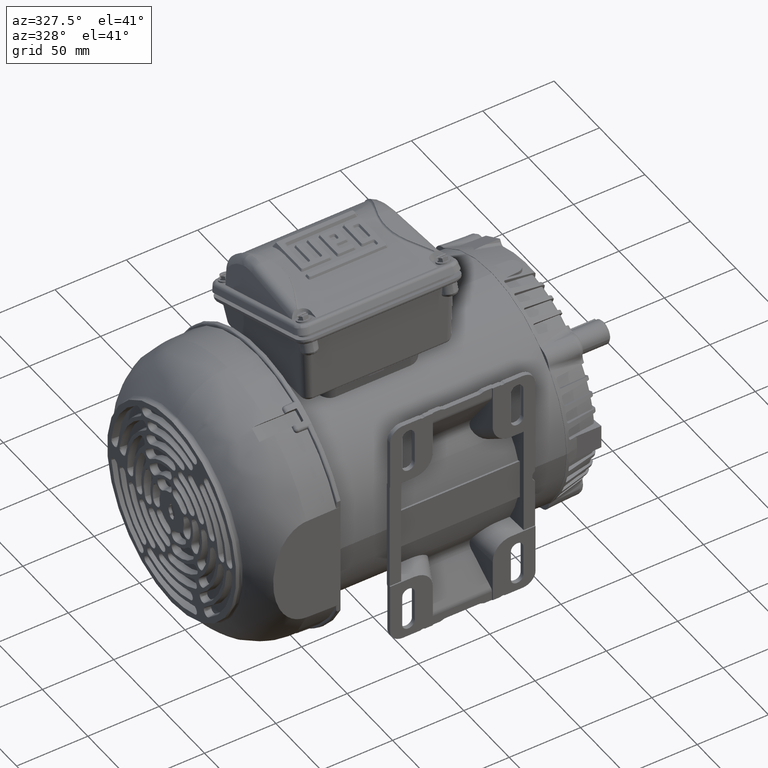
[diagram: clean part render]
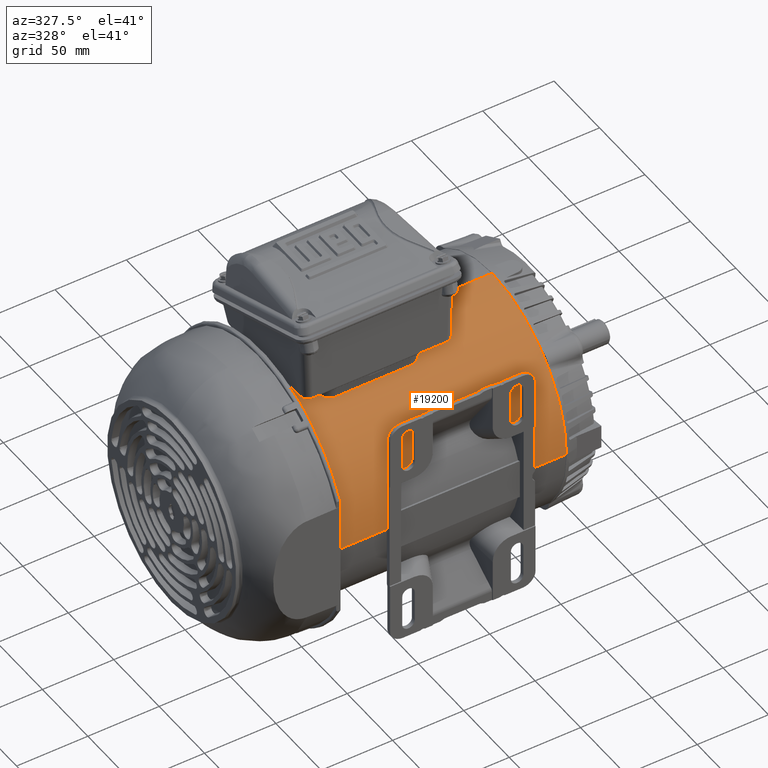
[diagram: same view with one face highlighted and labeled with its STEP entity id]
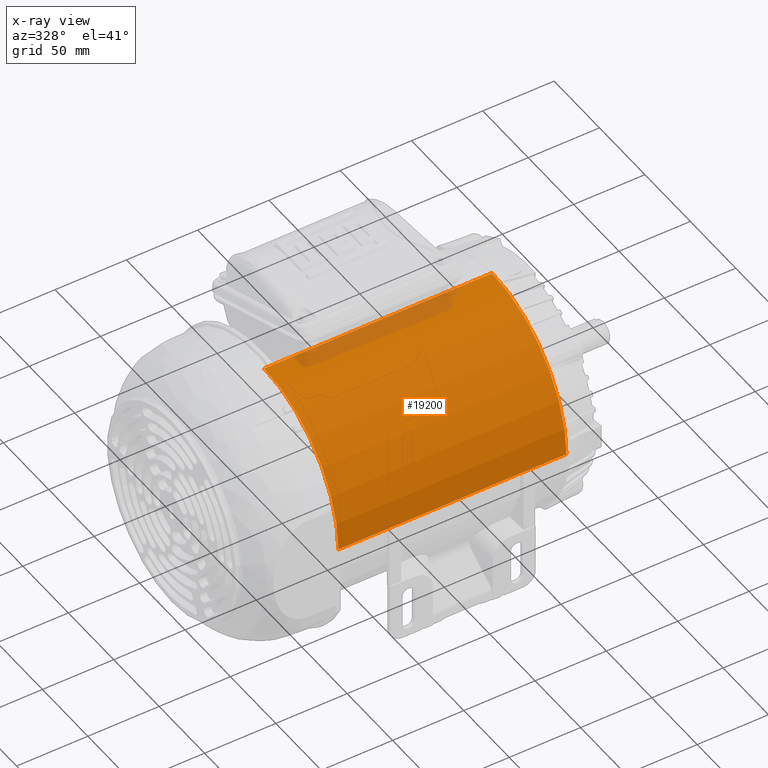
[diagram: x-ray of the same camera — body ghosted, the highlighted face saturated]
A machine part, auxiliary view. The second image highlights one B-rep face of the part: STEP entity #19200.
The next image is the same camera in x-ray: the body ghosted, the highlighted face saturated — about 6% of this face is hidden behind the body in this view.
In plain terms, the highlighted cylindrical surface (partial cylindrical patch) has radius 81.875 mm, axis along (-1, 0, 0).
Its self-contained STEP definition (entity closure, byte-faithful):
#2471 = EDGE_CURVE ( 'NONE', #36172, #6163, #30353, .T. ) ;
#2647 = AXIS2_PLACEMENT_3D ( 'NONE', #12856, #13386, #34294 ) ;
#3170 = CYLINDRICAL_SURFACE ( 'NONE', #12369, 3.223425196850393970 ) ;
#3432 = DIRECTION ( 'NONE',  ( 0.000000000000000000, 0.000000000000000000, 1.000000000000000000 ) ) ;
#5210 = CARTESIAN_POINT ( 'NONE',  ( 4.384385861599961132, -0.2466438790074921283, 3.223425196850422836 ) ) ;
#5660 = VECTOR ( 'NONE', #30340, 39.37007874015748143 ) ;
#5820 = LINE ( 'NONE', #10151, #21797 ) ;
#6163 = VERTEX_POINT ( 'NONE', #5210 ) ;
#7849 = ORIENTED_EDGE ( 'NONE', *, *, #32726, .T. ) ;
#10151 = CARTESIAN_POINT ( 'NONE',  ( 25.65669736296602110, -3.470069026762315101, 0.0005625938258483394877 ) ) ;
#12369 = AXIS2_PLACEMENT_3D ( 'NONE', #52790, #40598, #3432 ) ;
#12856 = CARTESIAN_POINT ( 'NONE',  ( 4.384385861599961132, -0.2466438790074921283, 2.898961162089067626E-14 ) ) ;
#12879 = CARTESIAN_POINT ( 'NONE',  ( 4.384385861599961132, -3.470069026762315101, 0.0005625938258489315705 ) ) ;
#13386 = DIRECTION ( 'NONE',  ( -1.000000000000000000, 0.000000000000000000, 0.000000000000000000 ) ) ;
#13813 = AXIS2_PLACEMENT_3D ( 'NONE', #48546, #43946, #31717 ) ;
#15910 = FACE_OUTER_BOUND ( 'NONE', #42735, .T. ) ;
#17273 = ORIENTED_EDGE ( 'NONE', *, *, #23267, .T. ) ;
#18962 = CARTESIAN_POINT ( 'NONE',  ( 25.65669736296602110, -0.2466438790074921283, 3.223425196850422836 ) ) ;
#19200 = ADVANCED_FACE ( 'NONE', ( #15910 ), #3170, .T. ) ;
#21797 = VECTOR ( 'NONE', #38646, 39.37007874015748143 ) ;
#23267 = EDGE_CURVE ( 'NONE', #6163, #39654, #42563, .T. ) ;
#28490 = EDGE_CURVE ( 'NONE', #39654, #37618, #34503, .T. ) ;
#30340 = DIRECTION ( 'NONE',  ( -1.000000000000000000, 0.000000000000000000, 0.000000000000000000 ) ) ;
#30353 = CIRCLE ( 'NONE', #2647, 3.223425196850393970 ) ;
#31294 = CARTESIAN_POINT ( 'NONE',  ( -1.914826736825236075, -0.2466438790074921283, 3.223425196850422836 ) ) ;
#31717 = DIRECTION ( 'NONE',  ( 0.000000000000000000, 0.000000000000000000, 1.000000000000000000 ) ) ;
#32726 = EDGE_CURVE ( 'NONE', #37618, #36172, #5820, .T. ) ;
#34294 = DIRECTION ( 'NONE',  ( 0.000000000000000000, 0.000000000000000000, 1.000000000000000000 ) ) ;
#34503 = CIRCLE ( 'NONE', #13813, 3.223425196850393970 ) ;
#36172 = VERTEX_POINT ( 'NONE', #12879 ) ;
#37618 = VERTEX_POINT ( 'NONE', #45322 ) ;
#38410 = ORIENTED_EDGE ( 'NONE', *, *, #28490, .T. ) ;
#38646 = DIRECTION ( 'NONE',  ( 1.000000000000000000, -0.000000000000000000, -0.000000000000000000 ) ) ;
#39654 = VERTEX_POINT ( 'NONE', #31294 ) ;
#40598 = DIRECTION ( 'NONE',  ( -1.000000000000000000, 0.000000000000000000, 0.000000000000000000 ) ) ;
#42441 = ORIENTED_EDGE ( 'NONE', *, *, #2471, .T. ) ;
#42563 = LINE ( 'NONE', #18962, #5660 ) ;
#42735 = EDGE_LOOP ( 'NONE', ( #42441, #17273, #38410, #7849 ) ) ;
#43946 = DIRECTION ( 'NONE',  ( 1.000000000000000000, -0.000000000000000000, -0.000000000000000000 ) ) ;
#45322 = CARTESIAN_POINT ( 'NONE',  ( -1.914826736825236075, -3.470069026762315101, 0.0005625938258487346794 ) ) ;
#48546 = CARTESIAN_POINT ( 'NONE',  ( -1.914826736825236075, -0.2466438790074921283, 2.898961162089067626E-14 ) ) ;
#52790 = CARTESIAN_POINT ( 'NONE',  ( 25.65669736296602110, -0.2466438790074921283, 2.898961162089067626E-14 ) ) ;